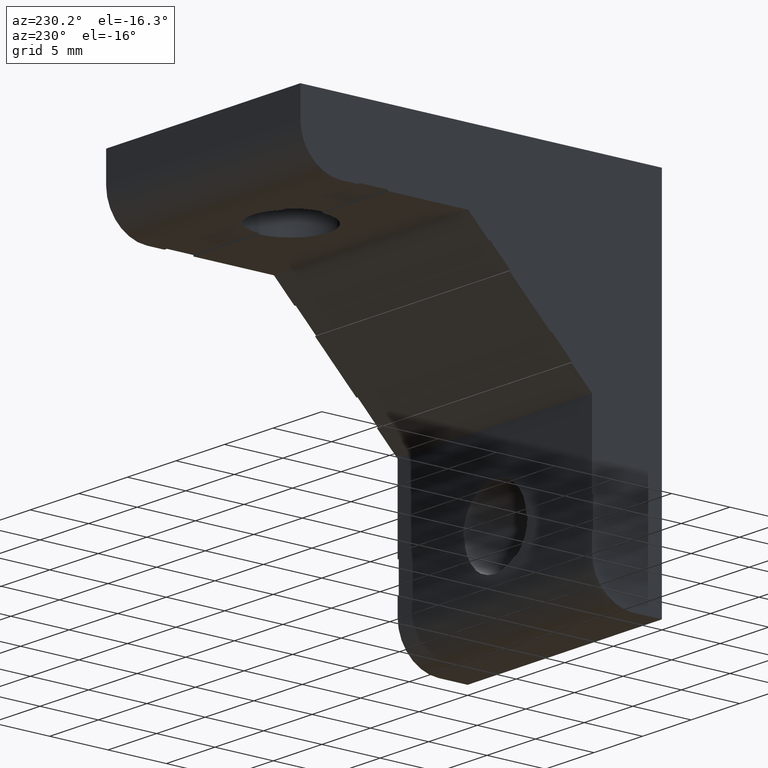
[diagram: clean part render]
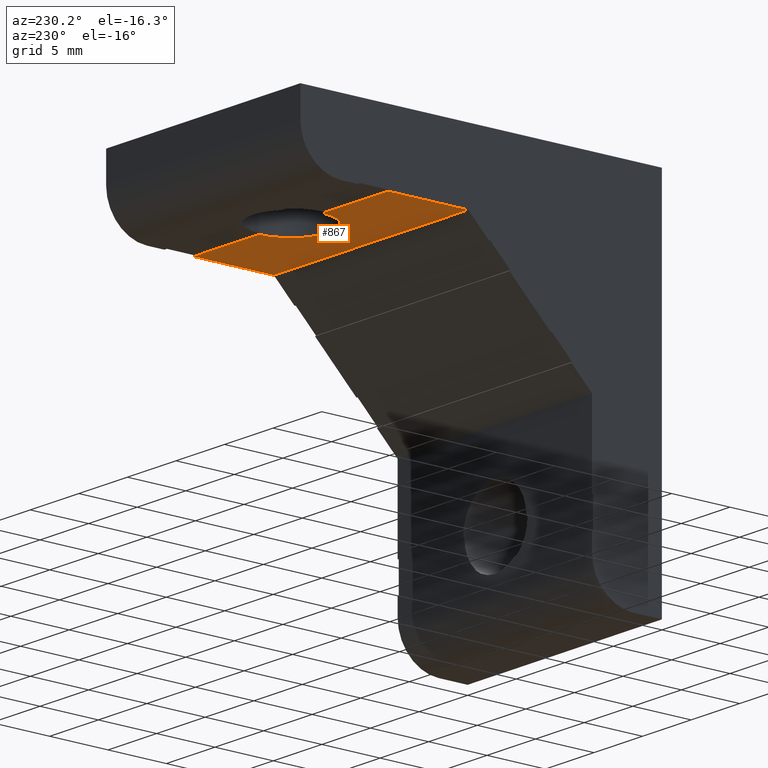
[diagram: same view with one face highlighted and labeled with its STEP entity id]
A machine part, auxiliary view. The second image highlights one B-rep face of the part: STEP entity #867.
In plain terms, the highlighted planar face has unit normal (-0, 0, 1).
Its self-contained STEP definition (entity closure, byte-faithful):
#50 = ORIENTED_EDGE ( 'NONE', *, *, #1307, .F. ) ;
#51 = ORIENTED_EDGE ( 'NONE', *, *, #1125, .F. ) ;
#52 = ORIENTED_EDGE ( 'NONE', *, *, #1006, .F. ) ;
#53 = ORIENTED_EDGE ( 'NONE', *, *, #1003, .F. ) ;
#54 = ORIENTED_EDGE ( 'NONE', *, *, #282, .F. ) ;
#55 = ORIENTED_EDGE ( 'NONE', *, *, #284, .F. ) ;
#109 = LINE ( 'NONE', #636, #110 ) ;
#110 = VECTOR ( 'NONE', #637, 1000.000000000000000 ) ;
#113 = LINE ( 'NONE', #640, #114 ) ;
#114 = VECTOR ( 'NONE', #641, 1000.000000000000000 ) ;
#282 = EDGE_CURVE ( 'NONE', #1084, #1074, #109, .T. ) ;
#284 = EDGE_CURVE ( 'NONE', #1038, #1084, #113, .T. ) ;
#323 = CARTESIAN_POINT ( 'NONE',  ( 19.99999999999999600, 16.60660171800000400, -6.000000000000000000 ) ) ;
#324 = CARTESIAN_POINT ( 'NONE',  ( 0.0000000000000000000, 16.60660172250000200, -6.000000000000000000 ) ) ;
#325 = CARTESIAN_POINT ( 'NONE',  ( 20.00000000000000000, 23.50000000000000400, -6.000000000000000900 ) ) ;
#334 = CARTESIAN_POINT ( 'NONE',  ( 0.0000000000000000000, 23.50000000000000400, -6.000000000000000900 ) ) ;
#350 = CARTESIAN_POINT ( 'NONE',  ( 10.00000000000000000, 23.50000000000000000, -6.000000000000000000 ) ) ;
#351 = DIRECTION ( 'NONE',  ( -1.000000000000000000, -0.0000000000000000000, -0.0000000000000000000 ) ) ;
#367 = CARTESIAN_POINT ( 'NONE',  ( 10.00000000000000000, 23.50000000000000000, -6.000000000000000000 ) ) ;
#368 = DIRECTION ( 'NONE',  ( 0.0000000000000000000, 0.0000000000000000000, -1.000000000000000000 ) ) ;
#369 = DIRECTION ( 'NONE',  ( -1.000000000000000000, 0.0000000000000000000, 0.0000000000000000000 ) ) ;
#481 = PLANE ( 'NONE',  #826 ) ;
#482 = CARTESIAN_POINT ( 'NONE',  ( 0.0000000000000000000, 23.50000000000000000, -6.000000000000000000 ) ) ;
#483 = DIRECTION ( 'NONE',  ( -0.0000000000000000000, 0.0000000000000000000, 1.000000000000000000 ) ) ;
#484 = DIRECTION ( 'NONE',  ( 0.0000000000000000000, -1.000000000000000000, 0.0000000000000000000 ) ) ;
#506 = CARTESIAN_POINT ( 'NONE',  ( 10.00000000000000000, 16.60660171800000400, -6.000000000000000000 ) ) ;
#507 = DIRECTION ( 'NONE',  ( 1.000000000000000000, 0.0000000000000000000, 0.0000000000000000000 ) ) ;
#512 = CARTESIAN_POINT ( 'NONE',  ( 20.00000000000000000, 20.05330085900000400, -6.000000000000000000 ) ) ;
#513 = DIRECTION ( 'NONE',  ( -0.0000000000000000000, 1.000000000000000000, -0.0000000000000000000 ) ) ;
#548 = CARTESIAN_POINT ( 'NONE',  ( 6.750000000000000900, 23.50000000000000000, -6.000000000000000000 ) ) ;
#552 = CARTESIAN_POINT ( 'NONE',  ( 13.25000000000000000, 23.50000000000000000, -6.000000000000000000 ) ) ;
#636 = CARTESIAN_POINT ( 'NONE',  ( 0.0000000000000000000, 20.05330085900000400, -6.000000000000000000 ) ) ;
#637 = DIRECTION ( 'NONE',  ( 0.0000000000000000000, -1.000000000000000000, 0.0000000000000000000 ) ) ;
#640 = CARTESIAN_POINT ( 'NONE',  ( 10.00000000000000000, 23.50000000000000000, -6.000000000000000000 ) ) ;
#641 = DIRECTION ( 'NONE',  ( -1.000000000000000000, -0.0000000000000000000, -0.0000000000000000000 ) ) ;
#728 = CIRCLE ( 'NONE', #835, 3.249999999999999600 ) ;
#826 = AXIS2_PLACEMENT_3D ( 'NONE', #482, #483, #484 ) ;
#835 = AXIS2_PLACEMENT_3D ( 'NONE', #367, #368, #369 ) ;
#867 = ADVANCED_FACE ( 'NONE', ( #888 ), #481, .F. ) ;
#888 = FACE_OUTER_BOUND ( 'NONE', #1189, .T. ) ;
#898 = LINE ( 'NONE', #506, #899 ) ;
#899 = VECTOR ( 'NONE', #507, 1000.000000000000000 ) ;
#904 = LINE ( 'NONE', #512, #905 ) ;
#905 = VECTOR ( 'NONE', #513, 1000.000000000000000 ) ;
#929 = LINE ( 'NONE', #350, #930 ) ;
#930 = VECTOR ( 'NONE', #351, 1000.000000000000000 ) ;
#1003 = EDGE_CURVE ( 'NONE', #1074, #1073, #898, .T. ) ;
#1006 = EDGE_CURVE ( 'NONE', #1073, #1075, #904, .T. ) ;
#1038 = VERTEX_POINT ( 'NONE', #548 ) ;
#1042 = VERTEX_POINT ( 'NONE', #552 ) ;
#1073 = VERTEX_POINT ( 'NONE', #323 ) ;
#1074 = VERTEX_POINT ( 'NONE', #324 ) ;
#1075 = VERTEX_POINT ( 'NONE', #325 ) ;
#1084 = VERTEX_POINT ( 'NONE', #334 ) ;
#1125 = EDGE_CURVE ( 'NONE', #1075, #1042, #929, .T. ) ;
#1189 = EDGE_LOOP ( 'NONE', ( #50, #51, #52, #53, #54, #55 ) ) ;
#1307 = EDGE_CURVE ( 'NONE', #1042, #1038, #728, .T. ) ;